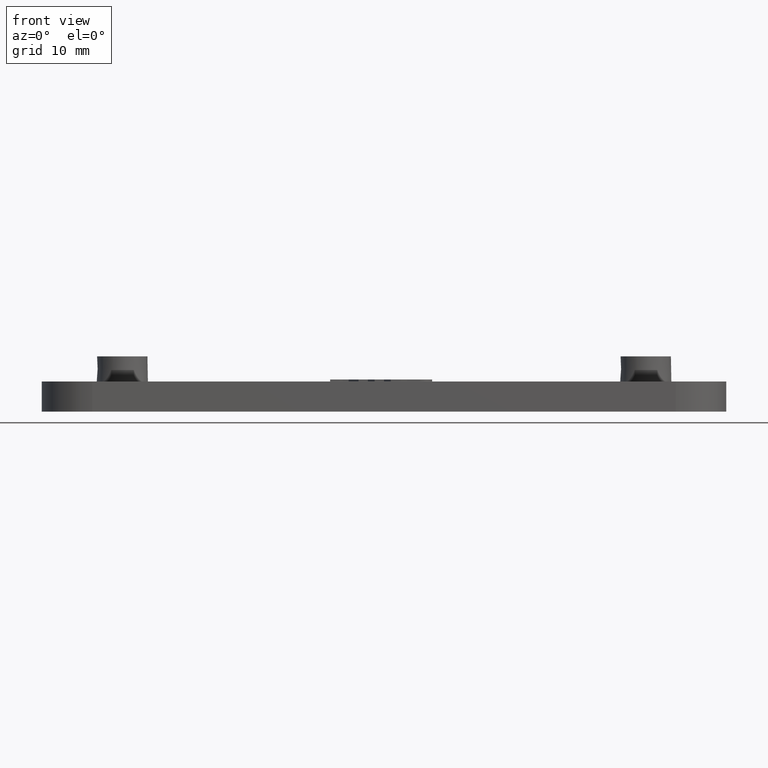
[diagram: clean part render]
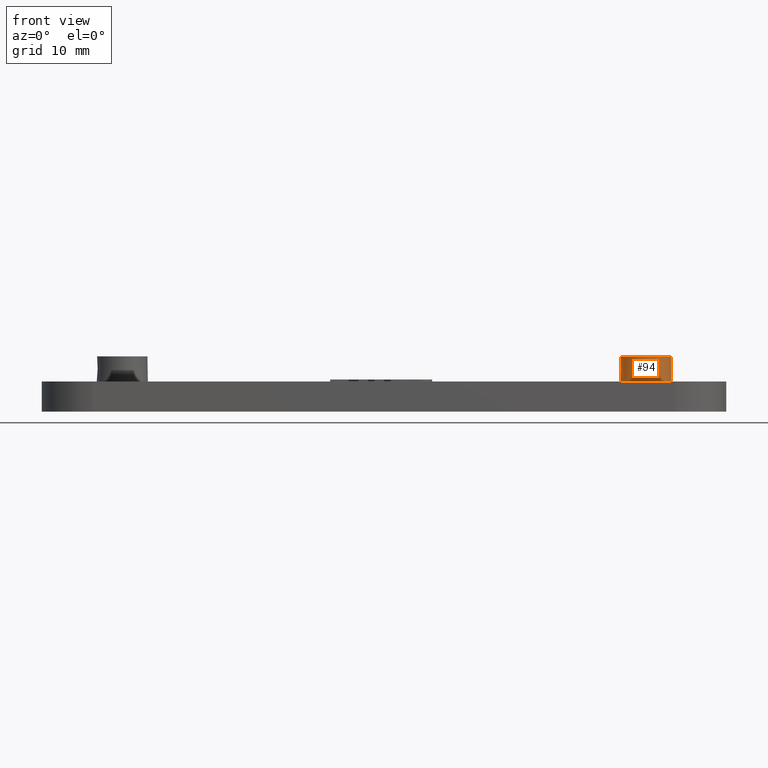
[diagram: same view with one face highlighted and labeled with its STEP entity id]
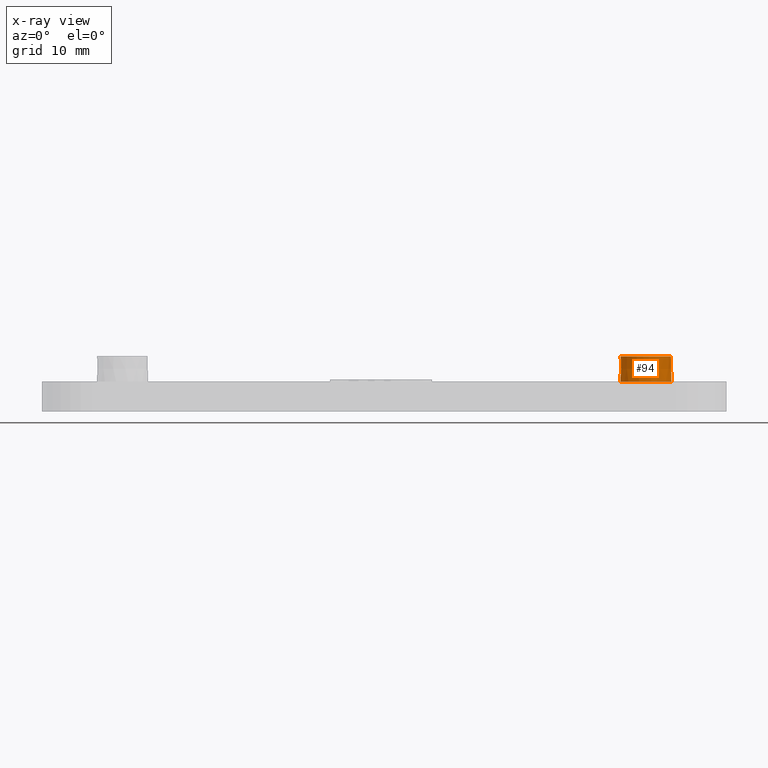
[diagram: x-ray of the same camera — body ghosted, the highlighted face saturated]
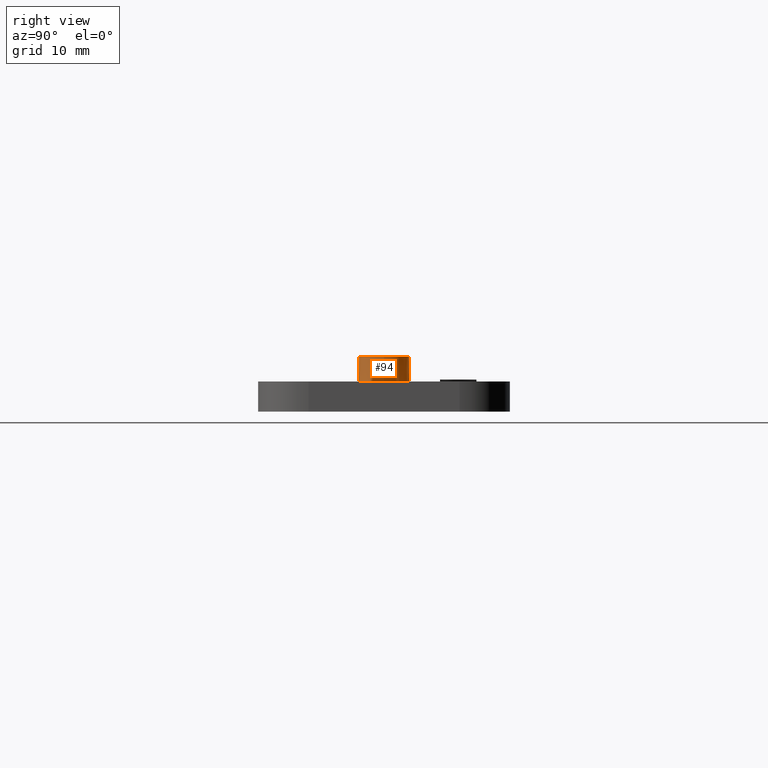
[diagram: same view with one face highlighted and labeled with its STEP entity id]
A machine part, front view. The second image highlights one B-rep face of the part: STEP entity #94.
The next image is the same camera in x-ray: the body ghosted, the highlighted face saturated — about 0% of this face is hidden behind the body in this view.
A second angle (right view) of the same face is appended — the face is thin or edge-on in the first view.
In plain terms, the highlighted conical surface has half-angle 1 deg.
Its self-contained STEP definition (entity closure, byte-faithful):
#94 = ADVANCED_FACE( '', ( #185, #186 ), #187, .T. );
#185 = FACE_OUTER_BOUND( '', #318, .T. );
#186 = FACE_BOUND( '', #319, .T. );
#187 = CONICAL_SURFACE( '', #320, 2.50000000000000, 0.0174532925199433 );
#318 = EDGE_LOOP( '', ( #585 ) );
#319 = EDGE_LOOP( '', ( #586 ) );
#320 = AXIS2_PLACEMENT_3D( '', #587, #588, #589 );
#585 = ORIENTED_EDGE( '', *, *, #901, .T. );
#586 = ORIENTED_EDGE( '', *, *, #965, .F. );
#587 = CARTESIAN_POINT( '', ( 26.0000000000000, 2.84895804864016E-015, 5.50000000000002 ) );
#588 = DIRECTION( '', ( 0.000000000000000, -6.12303176911189E-017, -1.00000000000000 ) );
#589 = DIRECTION( '', ( 0.000000000000000, 1.00000000000000, -6.12303176911189E-017 ) );
#901 = EDGE_CURVE( '', #1068, #1068, #1069, .T. );
#965 = EDGE_CURVE( '', #1180, #1180, #1181, .T. );
#1068 = VERTEX_POINT( '', #1331 );
#1069 = CIRCLE( '', #1332, 2.54363766232055 );
#1180 = VERTEX_POINT( '', #1496 );
#1181 = CIRCLE( '', #1497, 2.50000000000000 );
#1331 = CARTESIAN_POINT( '', ( 26.0000000000000, -2.54363766232054, 3.00000000000002 ) );
#1332 = AXIS2_PLACEMENT_3D( '', #1685, #1686, #1687 );
#1496 = CARTESIAN_POINT( '', ( 28.5000000000000, 2.08357907750118E-015, 5.50000000000002 ) );
#1497 = AXIS2_PLACEMENT_3D( '', #1771, #1772, #1773 );
#1685 = CARTESIAN_POINT( '', ( 26.0000000000000, 2.69588225441237E-015, 3.00000000000002 ) );
#1686 = DIRECTION( '', ( 0.000000000000000, 6.12303176911189E-017, 1.00000000000000 ) );
#1687 = DIRECTION( '', ( 0.000000000000000, -1.00000000000000, 6.12303176911189E-017 ) );
#1771 = CARTESIAN_POINT( '', ( 26.0000000000000, 2.84895804864016E-015, 5.50000000000002 ) );
#1772 = DIRECTION( '', ( 3.50324616081204E-048, 6.12303176911189E-017, 1.00000000000000 ) );
#1773 = DIRECTION( '', ( 1.00000000000000, -3.06151588455594E-016, 1.87457590227767E-032 ) );